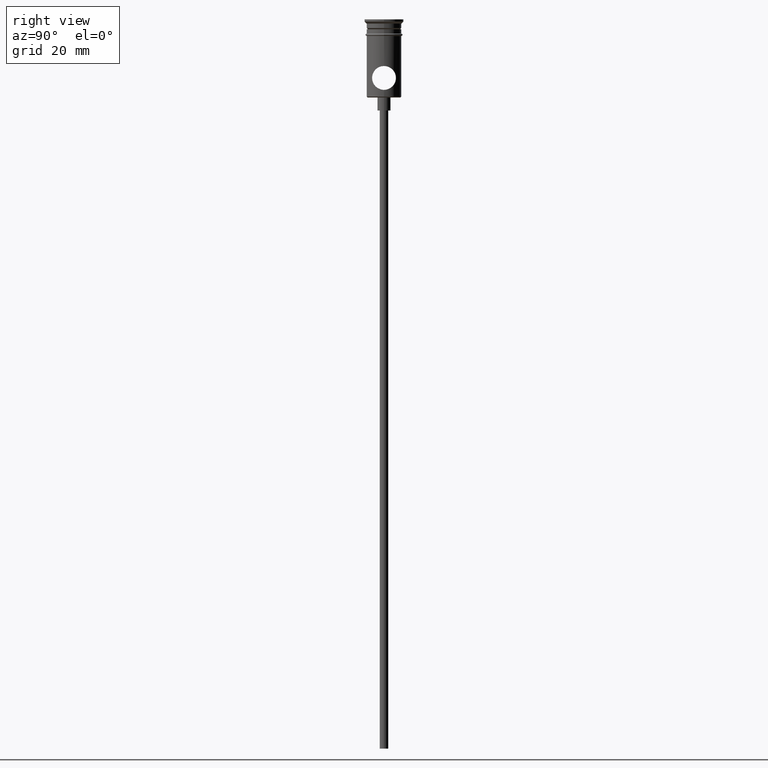
[diagram: clean part render]
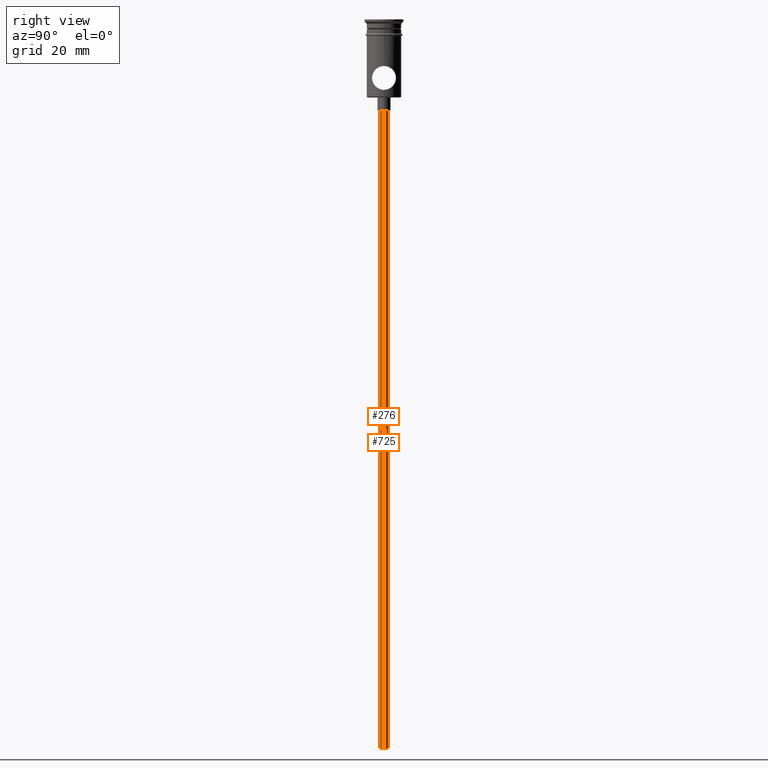
[diagram: same view with one multi-face feature highlighted, each face labeled with its STEP entity id]
A machine part, right view. The highlighted faces form ONE feature: a constant-radius fillet chain: 2 tangent blend faces with common blend radius 1 mm. The faces share edges in the B-rep.
Their STEP definitions:
[1] entity #725 (Cylinder):
#34 = AXIS2_PLACEMENT_3D ( 'NONE', #205, #1063, #415 ) ;
#37 = VECTOR ( 'NONE', #1285, 1000.000000000000000 ) ;
#44 = DIRECTION ( 'NONE',  ( -1.000000000000000000, 0.000000000000000000, 0.000000000000000000 ) ) ;
#52 = VERTEX_POINT ( 'NONE', #1406 ) ;
#63 = VECTOR ( 'NONE', #786, 1000.000000000000000 ) ;
#86 = AXIS2_PLACEMENT_3D ( 'NONE', #568, #1022, #44 ) ;
#88 = FACE_OUTER_BOUND ( 'NONE', #266, .T. ) ;
#205 = CARTESIAN_POINT ( 'NONE',  ( 0.000000000000000000, 0.000000000000000000, -167.9999999999999716 ) ) ;
#220 = CIRCLE ( 'NONE', #310, 0.9999999999999997780 ) ;
#243 = DIRECTION ( 'NONE',  ( 0.000000000000000000, 0.000000000000000000, -1.000000000000000000 ) ) ;
#266 = EDGE_LOOP ( 'NONE', ( #442, #1231, #492, #1018 ) ) ;
#310 = AXIS2_PLACEMENT_3D ( 'NONE', #354, #243, #992 ) ;
#354 = CARTESIAN_POINT ( 'NONE',  ( 0.000000000000000000, 0.000000000000000000, -20.99999999999999645 ) ) ;
#385 = VERTEX_POINT ( 'NONE', #867 ) ;
#400 = VERTEX_POINT ( 'NONE', #526 ) ;
#415 = DIRECTION ( 'NONE',  ( 1.000000000000000000, 0.000000000000000000, 0.000000000000000000 ) ) ;
#442 = ORIENTED_EDGE ( 'NONE', *, *, #1225, .F. ) ;
#492 = ORIENTED_EDGE ( 'NONE', *, *, #780, .T. ) ;
#523 = CARTESIAN_POINT ( 'NONE',  ( -0.9999999999999997780, 1.224646799147352961E-16, -167.9999999999999716 ) ) ;
#526 = CARTESIAN_POINT ( 'NONE',  ( 0.9999999999999997780, 0.000000000000000000, -20.99999999999999645 ) ) ;
#568 = CARTESIAN_POINT ( 'NONE',  ( 0.000000000000000000, 0.000000000000000000, -167.9999999999999716 ) ) ;
#667 = LINE ( 'NONE', #1107, #63 ) ;
#725 = ADVANCED_FACE ( 'NONE', ( #88 ), #1171, .T. ) ;
#780 = EDGE_CURVE ( 'NONE', #385, #400, #220, .T. ) ;
#786 = DIRECTION ( 'NONE',  ( -0.000000000000000000, -0.000000000000000000, 1.000000000000000000 ) ) ;
#836 = CIRCLE ( 'NONE', #86, 0.9999999999999997780 ) ;
#867 = CARTESIAN_POINT ( 'NONE',  ( -0.9999999999999997780, 1.224646799147352961E-16, -20.99999999999999645 ) ) ;
#942 = VERTEX_POINT ( 'NONE', #1025 ) ;
#992 = DIRECTION ( 'NONE',  ( -1.000000000000000000, 0.000000000000000000, 0.000000000000000000 ) ) ;
#1018 = ORIENTED_EDGE ( 'NONE', *, *, #1193, .F. ) ;
#1022 = DIRECTION ( 'NONE',  ( 0.000000000000000000, 0.000000000000000000, -1.000000000000000000 ) ) ;
#1025 = CARTESIAN_POINT ( 'NONE',  ( 0.9999999999999997780, 0.000000000000000000, -167.9999999999999716 ) ) ;
#1063 = DIRECTION ( 'NONE',  ( -0.000000000000000000, -0.000000000000000000, 1.000000000000000000 ) ) ;
#1079 = EDGE_CURVE ( 'NONE', #52, #385, #1401, .T. ) ;
#1107 = CARTESIAN_POINT ( 'NONE',  ( 0.9999999999999997780, 0.000000000000000000, -167.9999999999999716 ) ) ;
#1171 = CYLINDRICAL_SURFACE ( 'NONE', #34, 0.9999999999999997780 ) ;
#1193 = EDGE_CURVE ( 'NONE', #942, #400, #667, .T. ) ;
#1225 = EDGE_CURVE ( 'NONE', #52, #942, #836, .T. ) ;
#1231 = ORIENTED_EDGE ( 'NONE', *, *, #1079, .T. ) ;
#1285 = DIRECTION ( 'NONE',  ( -0.000000000000000000, -0.000000000000000000, 1.000000000000000000 ) ) ;
#1401 = LINE ( 'NONE', #523, #37 ) ;
#1406 = CARTESIAN_POINT ( 'NONE',  ( -0.9999999999999997780, 1.224646799147352961E-16, -167.9999999999999716 ) ) ;
[2] entity #276 (Cylinder):
#4 = DIRECTION ( 'NONE',  ( -1.000000000000000000, 0.000000000000000000, 0.000000000000000000 ) ) ;
#16 = EDGE_CURVE ( 'NONE', #942, #52, #1017, .T. ) ;
#32 = DIRECTION ( 'NONE',  ( 0.000000000000000000, 0.000000000000000000, -1.000000000000000000 ) ) ;
#37 = VECTOR ( 'NONE', #1285, 1000.000000000000000 ) ;
#45 = ORIENTED_EDGE ( 'NONE', *, *, #16, .F. ) ;
#52 = VERTEX_POINT ( 'NONE', #1406 ) ;
#53 = CARTESIAN_POINT ( 'NONE',  ( 0.000000000000000000, 0.000000000000000000, -167.9999999999999716 ) ) ;
#60 = CIRCLE ( 'NONE', #1129, 0.9999999999999997780 ) ;
#63 = VECTOR ( 'NONE', #786, 1000.000000000000000 ) ;
#75 = EDGE_LOOP ( 'NONE', ( #1007, #45, #1351, #658 ) ) ;
#234 = DIRECTION ( 'NONE',  ( 0.000000000000000000, 0.000000000000000000, -1.000000000000000000 ) ) ;
#276 = ADVANCED_FACE ( 'NONE', ( #1357 ), #1046, .T. ) ;
#381 = DIRECTION ( 'NONE',  ( -0.000000000000000000, -0.000000000000000000, 1.000000000000000000 ) ) ;
#385 = VERTEX_POINT ( 'NONE', #867 ) ;
#400 = VERTEX_POINT ( 'NONE', #526 ) ;
#523 = CARTESIAN_POINT ( 'NONE',  ( -0.9999999999999997780, 1.224646799147352961E-16, -167.9999999999999716 ) ) ;
#526 = CARTESIAN_POINT ( 'NONE',  ( 0.9999999999999997780, 0.000000000000000000, -20.99999999999999645 ) ) ;
#658 = ORIENTED_EDGE ( 'NONE', *, *, #827, .T. ) ;
#667 = LINE ( 'NONE', #1107, #63 ) ;
#786 = DIRECTION ( 'NONE',  ( -0.000000000000000000, -0.000000000000000000, 1.000000000000000000 ) ) ;
#827 = EDGE_CURVE ( 'NONE', #400, #385, #60, .T. ) ;
#867 = CARTESIAN_POINT ( 'NONE',  ( -0.9999999999999997780, 1.224646799147352961E-16, -20.99999999999999645 ) ) ;
#910 = DIRECTION ( 'NONE',  ( -1.000000000000000000, 0.000000000000000000, 0.000000000000000000 ) ) ;
#942 = VERTEX_POINT ( 'NONE', #1025 ) ;
#986 = CARTESIAN_POINT ( 'NONE',  ( 0.000000000000000000, 0.000000000000000000, -20.99999999999999645 ) ) ;
#1007 = ORIENTED_EDGE ( 'NONE', *, *, #1079, .F. ) ;
#1011 = CARTESIAN_POINT ( 'NONE',  ( 0.000000000000000000, 0.000000000000000000, -167.9999999999999716 ) ) ;
#1017 = CIRCLE ( 'NONE', #1385, 0.9999999999999997780 ) ;
#1025 = CARTESIAN_POINT ( 'NONE',  ( 0.9999999999999997780, 0.000000000000000000, -167.9999999999999716 ) ) ;
#1046 = CYLINDRICAL_SURFACE ( 'NONE', #1330, 0.9999999999999997780 ) ;
#1079 = EDGE_CURVE ( 'NONE', #52, #385, #1401, .T. ) ;
#1107 = CARTESIAN_POINT ( 'NONE',  ( 0.9999999999999997780, 0.000000000000000000, -167.9999999999999716 ) ) ;
#1129 = AXIS2_PLACEMENT_3D ( 'NONE', #986, #234, #4 ) ;
#1193 = EDGE_CURVE ( 'NONE', #942, #400, #667, .T. ) ;
#1285 = DIRECTION ( 'NONE',  ( -0.000000000000000000, -0.000000000000000000, 1.000000000000000000 ) ) ;
#1330 = AXIS2_PLACEMENT_3D ( 'NONE', #53, #381, #1365 ) ;
#1351 = ORIENTED_EDGE ( 'NONE', *, *, #1193, .T. ) ;
#1357 = FACE_OUTER_BOUND ( 'NONE', #75, .T. ) ;
#1365 = DIRECTION ( 'NONE',  ( 1.000000000000000000, 0.000000000000000000, 0.000000000000000000 ) ) ;
#1385 = AXIS2_PLACEMENT_3D ( 'NONE', #1011, #32, #910 ) ;
#1401 = LINE ( 'NONE', #523, #37 ) ;
#1406 = CARTESIAN_POINT ( 'NONE',  ( -0.9999999999999997780, 1.224646799147352961E-16, -167.9999999999999716 ) ) ;